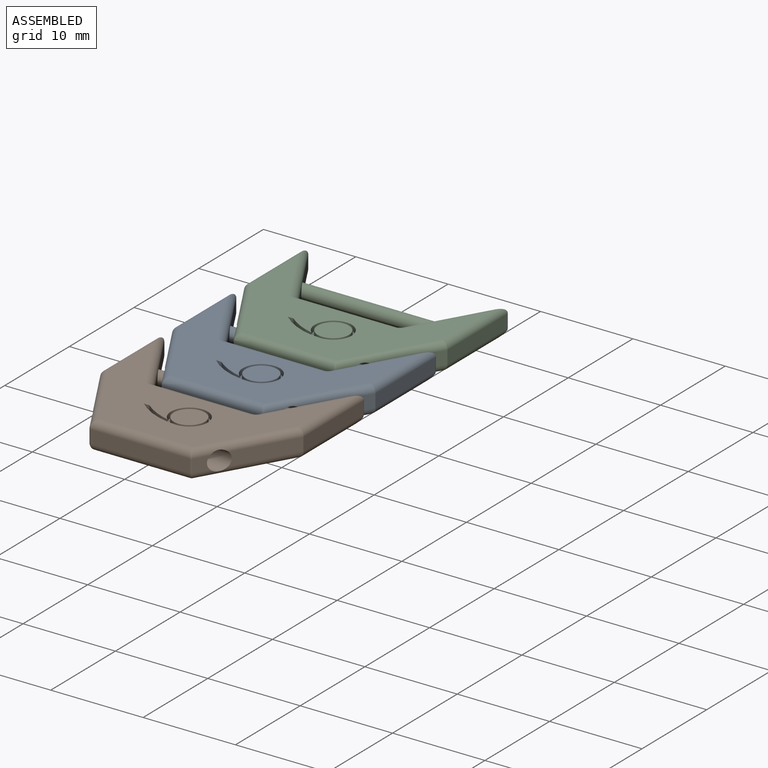
[diagram: assembled view]
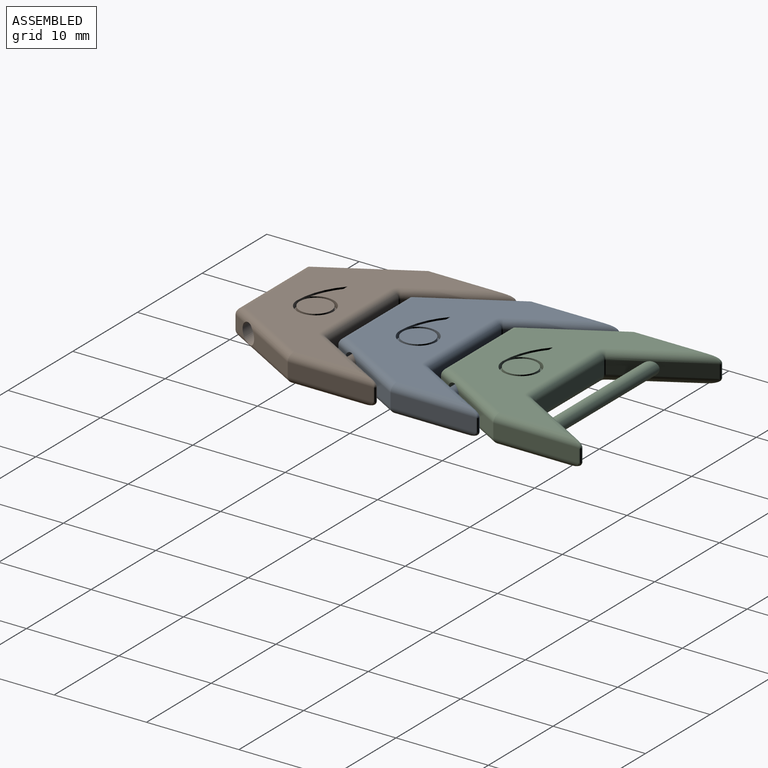
[diagram: assembled view, second angle]
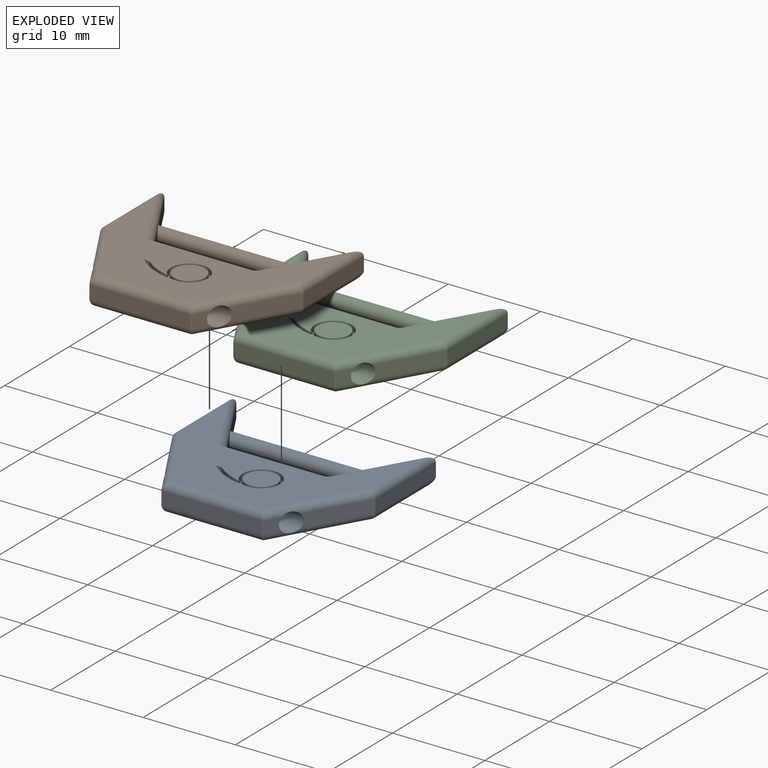
[diagram: exploded view]
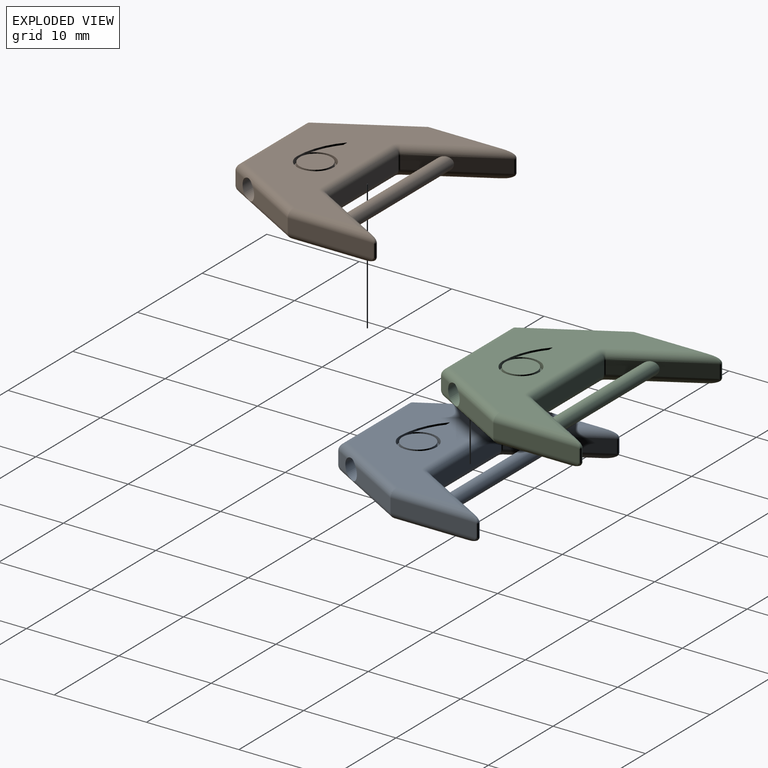
[diagram: exploded view, second angle]
ASSEMBLY  parts=3 mates=2
PART A: 63 faces, bbox 22.6x19.6x3 mm
  f0: plane 5.11x2.95mm, normal (-0.87,0.5,0), area 7.7mm2, adj f2,f4,f21,f55
  f1: plane 3.13x1.81mm, normal (0.87,0.5,0), area 4.5mm2, adj f3,f5,f23,f55
  f2: cylinder r=0.8mm len=9.18mm, axis (0.5,0.87,0), area 11.7mm2, adj f0,f12,f16,f33,f36,f55
  f3: cylinder r=0.8mm len=9.18mm, axis (0.5,-0.87,0), area 11.7mm2, adj f1,f14,f16,f37,f39,f55
  f4: cylinder r=0.8mm len=9.18mm, axis (-0.5,-0.87,0), area 11.7mm2, adj f0,f12,f17,f48,f51,f55
  f5: cylinder r=0.8mm len=9.18mm, axis (-0.5,0.87,0), area 11.7mm2, adj f1,f14,f17,f50,f53,f55
  f6: plane 6.3x3.64mm, normal (-0.87,-0.5,0), area 9.9mm2, adj f25,f32,f45,f54
  f7: plane 1.52x1.4mm, normal (0.87,-0.5,0), area 2.2mm2, adj f19,f27,f42,f54
  f8: plane 1.52x1.4mm, normal (-0.87,-0.5,0), area 2.2mm2, adj f18,f32,f45,f54
  f9: plane 10.77x1.4mm, normal (0,-1,0), area 15.1mm2, adj f18,f19,f28,f41
  f10: plane 6.3x3.64mm, normal (0.87,-0.5,0), area 9.9mm2, adj f20,f27,f42,f54
  f11: plane 9.23x1.4mm, normal (1,0,0), area 12.9mm2, adj f20,f21,f31,f46
  f12: plane 3.13x1.81mm, normal (-0.87,0.5,0), area 4.5mm2, adj f2,f4,f22,f55
  f13: plane 10.77x1.4mm, normal (0,1,0), area 15.1mm2, adj f22,f23,f38,f52
  f14: plane 5.11x2.95mm, normal (0.87,0.5,0), area 7.7mm2, adj f3,f5,f24,f55
  f15: plane 9.23x1.4mm, normal (-1,0,0), area 12.9mm2, adj f24,f25,f35,f49
  f16: plane 20.4x15.77mm, normal (0,0,1), area 142.9mm2, adj f2,f3,f27,f28,f31,f32,f35,f36
  f17: plane 20.4x15.77mm, normal (0,0,-1), area 157mm2, adj f4,f5,f41,f42,f45,f46,f49,f51
  f18: cylinder r=0.2mm len=1.4mm, axis (0,0,-1), area 0.3mm2, adj f8,f9,f30,f43
  f19: cylinder r=0.2mm len=1.4mm, axis (0,0,1), area 0.3mm2, adj f7,f9,f26,f40
  f20: cylinder r=0.2mm len=1.4mm, axis (0,0,-1), area 0.1mm2, adj f10,f11,f29,f44
  f21: cylinder r=0.2mm len=1.4mm, axis (0,0,1), area 0.7mm2, adj f0,f11,f33,f48
  f22: cylinder r=0.2mm len=1.4mm, axis (0,0,-1), area 0.3mm2, adj f12,f13,f36,f51
  f23: cylinder r=0.2mm len=1.4mm, axis (0,0,-1), area 0.3mm2, adj f1,f13,f39,f53
  f24: cylinder r=0.2mm len=1.4mm, axis (0,0,-1), area 0.7mm2, adj f14,f15,f37,f50
  f25: cylinder r=0.2mm len=1.4mm, axis (0,0,-1), area 0.1mm2, adj f6,f15,f34,f47
  f26: bspline ~0.91x0.8mm, area 0.2mm2, adj f19,f27,f28
  f27: cylinder r=0.8mm len=9.78mm, axis (-0.5,-0.87,0), area 12.9mm2, adj f7,f10,f16,f26,f29,f54
  f28: cylinder r=0.8mm len=10.77mm, axis (-1,0,0), area 13.2mm2, adj f9,f16,f26,f30
  f29: bspline ~0.91x0.8mm, area 0.1mm2, adj f20,f27,f31
  f30: bspline ~0.91x0.8mm, area 0.2mm2, adj f18,f28,f32
  f31: cylinder r=0.8mm len=9.23mm, axis (0,-1,0), area 10.5mm2, adj f11,f16,f29,f33
  f32: cylinder r=0.8mm len=9.78mm, axis (-0.5,0.87,0), area 12.9mm2, adj f6,f8,f16,f30,f34,f54
  f33: bspline ~2.99x1.21mm, area 0.7mm2, adj f2,f21,f31
  f34: bspline ~0.91x0.8mm, area 0.1mm2, adj f25,f32,f35
  f35: cylinder r=0.8mm len=9.23mm, axis (0,1,0), area 10.5mm2, adj f15,f16,f34,f37
  f36: torus R=1mm, axis (0,0,1), area 0.6mm2, adj f2,f16,f22,f38
  f37: bspline ~2.99x1.21mm, area 0.7mm2, adj f3,f24,f35
  f38: cylinder r=0.8mm len=10.77mm, axis (1,0,0), area 13.5mm2, adj f13,f16,f36,f39
  f39: torus R=1mm, axis (0,0,1), area 0.6mm2, adj f3,f16,f23,f38
  f40: bspline ~0.91x0.8mm, area 0.2mm2, adj f19,f41,f42
  f41: cylinder r=0.8mm len=10.77mm, axis (1,0,0), area 13.2mm2, adj f9,f17,f40,f43
  f42: cylinder r=0.8mm len=9.78mm, axis (0.5,0.87,0), area 12.9mm2, adj f7,f10,f17,f40,f44,f54
  f43: bspline ~0.91x0.8mm, area 0.2mm2, adj f18,f41,f45
  f44: bspline ~0.91x0.8mm, area 0.1mm2, adj f20,f42,f46
  f45: cylinder r=0.8mm len=9.78mm, axis (0.5,-0.87,0), area 12.9mm2, adj f6,f8,f17,f43,f47,f54
  f46: cylinder r=0.8mm len=9.23mm, axis (0,1,0), area 10.5mm2, adj f11,f17,f44,f48
  f47: bspline ~0.91x0.8mm, area 0.1mm2, adj f25,f45,f49
  f48: bspline ~2.99x1.21mm, area 0.7mm2, adj f4,f21,f46
  f49: cylinder r=0.8mm len=9.23mm, axis (0,-1,0), area 10.5mm2, adj f15,f17,f47,f50
  f50: bspline ~2.99x1.21mm, area 0.7mm2, adj f5,f24,f49
  f51: torus R=1mm, axis (0,0,1), area 0.6mm2, adj f4,f17,f22,f52
  f52: cylinder r=0.8mm len=10.77mm, axis (-1,0,0), area 13.5mm2, adj f13,f17,f51,f53
  f53: torus R=1mm, axis (0,0,1), area 0.6mm2, adj f5,f17,f23,f52
  f54: cylinder r=1.05mm len=14.98mm, axis (1,0,0), area 90.5mm2, adj f6,f7,f8,f10,f27,f32,f42,f45
  f55: cylinder r=0.75mm len=15.91mm, axis (-1,0,0), area 70.9mm2, adj f0,f1,f2,f3,f4,f5,f12,f14
  f56: cylinder r=7.5mm len=4.92mm, axis (0,0,1), area 3.3mm2, adj f16,f57,f60,f61
  f57: cylinder r=2mm len=4mm, axis (0,0,1), area 6.7mm2, adj f16,f56,f58,f61
  f58: cylinder r=7.5mm len=3mm, axis (0,0,1), area 2mm2, adj f16,f57,f60,f61
  f59: cylinder r=1.7mm len=3.4mm, axis (0,0,1), area 6.4mm2, adj f61,f62
  f60: plane 0.6x0.6mm, normal (0,-1,0), area 0.4mm2, adj f16,f56,f58,f61
  f61: plane 6.92x4mm, normal (0,0,1), area 5mm2, adj f56,f57,f58,f59,f60
  f62: plane 3.4x3.4mm, normal (0,0,1), area 9.1mm2, adj f59
PART B: same geometry as A
PART C: same geometry as A
PLACE A t=(13.14,4.76,-3.62)mm
PLACE B t=(13.14,-6.37,-3.62)mm
PLACE C t=(13.14,15.89,-3.62)mm
MATE revolute A.f54 <-> B.f55  axis (1,0,0) through (13.14,7.16,-3.62)mm
MATE revolute C.f54 <-> A.f55  axis (1,0,0) through (13.14,18.29,-3.62)mm
